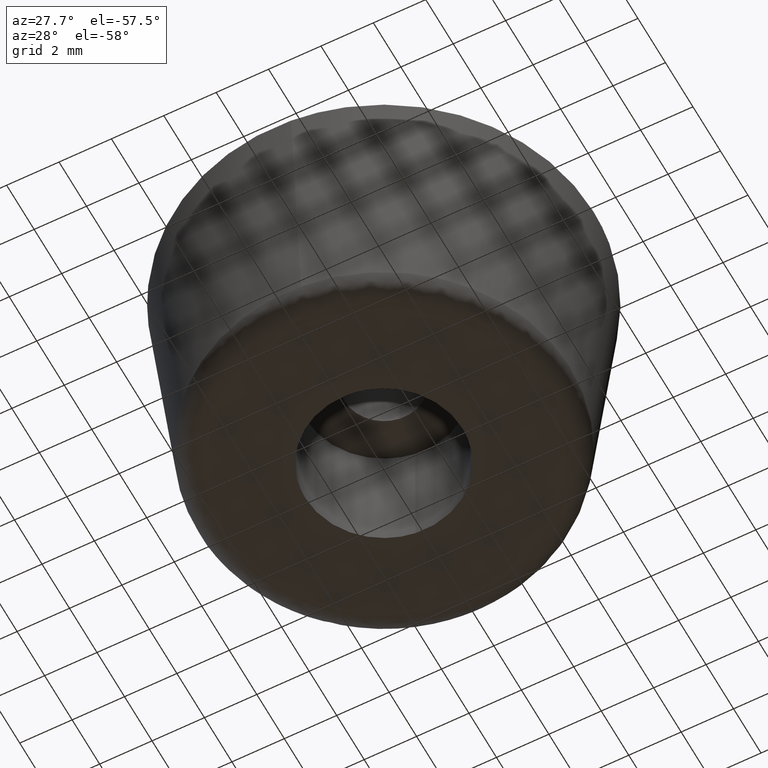
[diagram: clean part render]
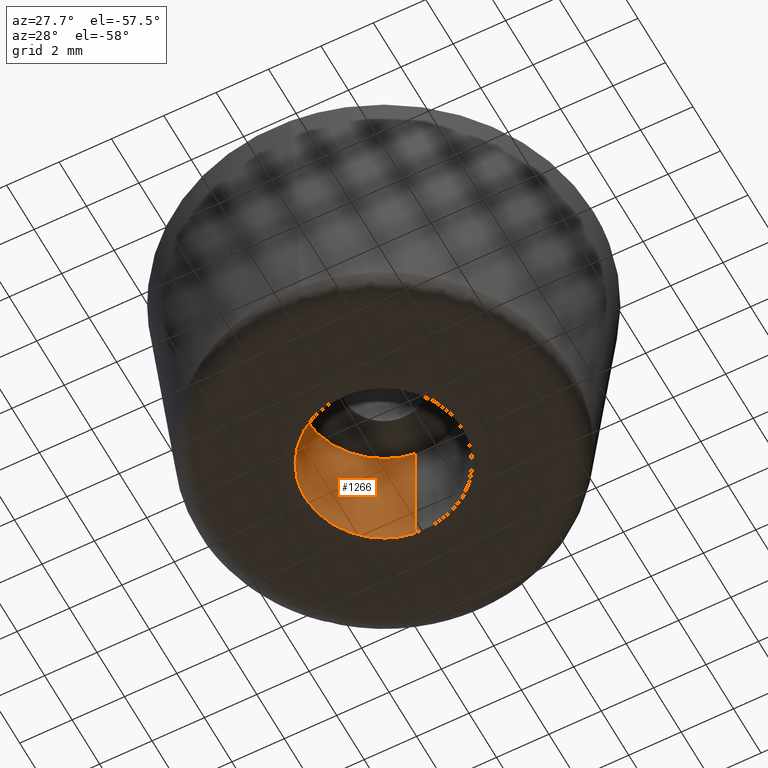
[diagram: same view with one face highlighted and labeled with its STEP entity id]
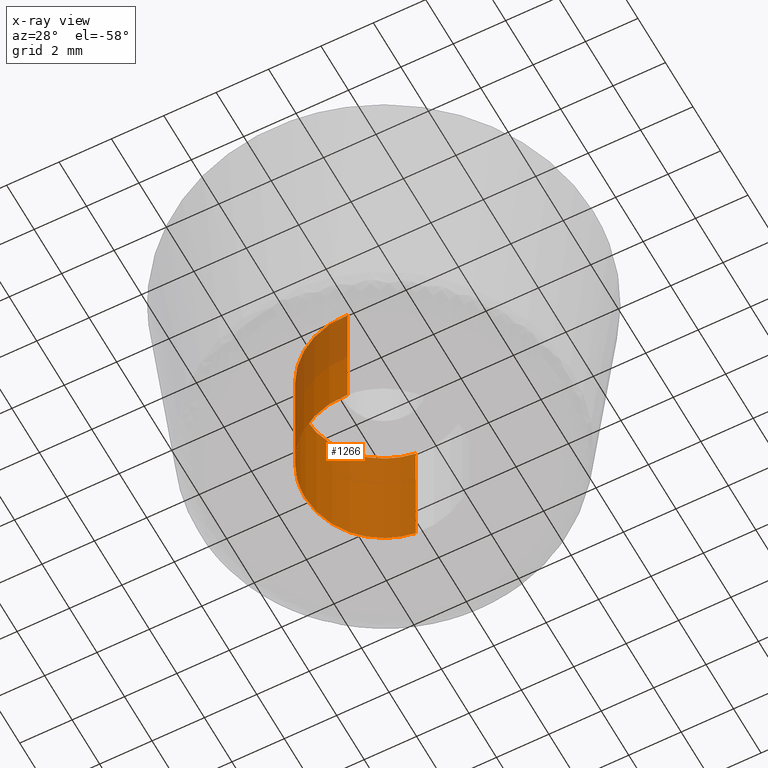
[diagram: x-ray of the same camera — body ghosted, the highlighted face saturated]
A machine part, auxiliary view. The second image highlights one B-rep face of the part: STEP entity #1266.
The next image is the same camera in x-ray: the body ghosted, the highlighted face saturated — about 16% of this face is hidden behind the body in this view.
In plain terms, the highlighted face is a freeform B-spline surface patch.
Its self-contained STEP definition (entity closure, byte-faithful):
#1103=CARTESIAN_POINT('',(-0.354100897287089,2.979028793841571,6.573276E-015));
#1104=VERTEX_POINT('',#1103);
#1122=CARTESIAN_POINT('',(0.183142324537267,-2.994404596735751,-1.675049E-014));
#1123=VERTEX_POINT('',#1122);
#1137=CARTESIAN_POINT('',(0.183142365225985,-2.994404594247211,5.0));
#1138=VERTEX_POINT('',#1137);
#1139=CARTESIAN_POINT('',(0.183142365225985,-2.994404594247211,5.0));
#1140=CARTESIAN_POINT('',(0.183142324537267,-2.994404596735751,-1.675049E-014));
#1141=QUASI_UNIFORM_CURVE('',1,(#1139,#1140),.UNSPECIFIED.,.F.,.U.);
#1142=EDGE_CURVE('',#1138,#1123,#1141,.T.);
#1159=CARTESIAN_POINT('',(-0.354100919549448,2.979028791195380,5.0));
#1160=VERTEX_POINT('',#1159);
#1176=CARTESIAN_POINT('',(-0.354100919549448,2.979028791195380,5.0));
#1177=CARTESIAN_POINT('',(-0.354100897287089,2.979028793841571,6.573276E-015));
#1178=QUASI_UNIFORM_CURVE('',1,(#1176,#1177),.UNSPECIFIED.,.F.,.U.);
#1179=EDGE_CURVE('',#1160,#1104,#1178,.T.);
#1184=CARTESIAN_POINT('',(0.183145618604571,-2.994404395265600,5.125000000000001));
#1185=CARTESIAN_POINT('',(-2.811258776661029,-3.177550013870171,5.125000000000001));
#1186=CARTESIAN_POINT('',(-2.994404395265600,-0.183145618604571,5.125000000000001));
#1187=CARTESIAN_POINT('',(-3.167358590197582,2.644630472518504,5.125000000000001));
#1188=CARTESIAN_POINT('',(-0.354102703970275,2.979028579091000,5.125000000000002));
#1189=CARTESIAN_POINT('',(0.183145618604571,-2.994404395265600,-0.128125000000000));
#1190=CARTESIAN_POINT('',(-2.811258776661029,-3.177550013870171,-0.128125000000000));
#1191=CARTESIAN_POINT('',(-2.994404395265600,-0.183145618604571,-0.128125000000000));
#1192=CARTESIAN_POINT('',(-3.167358590197582,2.644630472518504,-0.128125000000000));
#1193=CARTESIAN_POINT('',(-0.354102703970275,2.979028579091000,-0.128125000000000));
#1201=(BOUNDED_SURFACE()B_SPLINE_SURFACE(2,1,((#1184,#1189),(#1185,#1190),(#1186,#1191),(#1187,#1192),(#1188,#1193)),.UNSPECIFIED.,.F.,.F.,.U.)B_SPLINE_SURFACE_WITH_KNOTS((3,2,3),(2,2),(0.0,4.970562748477139,9.742302987015194),(0.0,5.253125000000001),.UNSPECIFIED.)GEOMETRIC_REPRESENTATION_ITEM()RATIONAL_B_SPLINE_SURFACE(((1.0,1.0),(0.707106781186548,0.707106781186548),(1.0,1.0),(0.718822509939086,0.718822509939086),(0.977505800795127,0.977505800795127)))REPRESENTATION_ITEM('')SURFACE());
#1202=CARTESIAN_POINT('',(-3.0,0.0,0.0));
#1203=VERTEX_POINT('',#1202);
#1204=CARTESIAN_POINT('',(-3.0,0.0,0.0));
#1205=CARTESIAN_POINT('',(-3.000000000000000,2.664525205176386,0.0));
#1206=CARTESIAN_POINT('',(-0.354100897287090,2.979028793841571,6.573276E-015));
#1214=(BOUNDED_CURVE()B_SPLINE_CURVE(2,(#1204,#1205,#1206),.UNSPECIFIED.,.F.,.U.)B_SPLINE_CURVE_WITH_KNOTS((3,3),(0.0,0.229562576010579),.UNSPECIFIED.)CURVE()GEOMETRIC_REPRESENTATION_ITEM()RATIONAL_B_SPLINE_CURVE((1.0,0.731050712772614,0.956026955082251))REPRESENTATION_ITEM(''));
#1215=EDGE_CURVE('',#1203,#1104,#1214,.T.);
#1216=ORIENTED_EDGE('',*,*,#1215,.T.);
#1217=ORIENTED_EDGE('',*,*,#1179,.F.);
#1218=CARTESIAN_POINT('',(-3.0,0.0,5.0));
#1219=VERTEX_POINT('',#1218);
#1220=CARTESIAN_POINT('',(-3.0,0.0,5.0));
#1221=CARTESIAN_POINT('',(-3.000000000000000,2.664525185124150,4.999999999999999));
#1222=CARTESIAN_POINT('',(-0.354100919549448,2.979028791195380,5.0));
#1230=(BOUNDED_CURVE()B_SPLINE_CURVE(2,(#1220,#1221,#1222),.UNSPECIFIED.,.F.,.U.)B_SPLINE_CURVE_WITH_KNOTS((3,3),(0.0,0.229562574747613),.UNSPECIFIED.)CURVE()GEOMETRIC_REPRESENTATION_ITEM()RATIONAL_B_SPLINE_CURVE((1.0,0.731050714252271,0.956026952606784))REPRESENTATION_ITEM(''));
#1231=EDGE_CURVE('',#1219,#1160,#1230,.T.);
#1232=ORIENTED_EDGE('',*,*,#1231,.F.);
#1233=CARTESIAN_POINT('',(0.183142365225985,-2.994404594247210,5.0));
#1234=CARTESIAN_POINT('',(0.091656658645530,-3.000000000000000,5.0));
#1235=CARTESIAN_POINT('',(0.0,-3.0,5.0));
#1236=CARTESIAN_POINT('',(-3.0,-3.0,5.000000000000001));
#1237=CARTESIAN_POINT('',(-3.0,0.0,5.0));
#1245=(BOUNDED_CURVE()B_SPLINE_CURVE(2,(#1233,#1234,#1235,#1236,#1237),.UNSPECIFIED.,.F.,.U.)B_SPLINE_CURVE_WITH_KNOTS((3,2,3),(0.739333149711674,0.750000000000000,1.0),.UNSPECIFIED.)CURVE()GEOMETRIC_REPRESENTATION_ITEM()RATIONAL_B_SPLINE_CURVE((0.976072443456796,0.987503007537804,1.0,0.707106781186548,1.0))REPRESENTATION_ITEM(''));
#1246=EDGE_CURVE('',#1138,#1219,#1245,.T.);
#1247=ORIENTED_EDGE('',*,*,#1246,.F.);
#1248=ORIENTED_EDGE('',*,*,#1142,.T.);
#1249=CARTESIAN_POINT('',(0.183142324537267,-2.994404596735751,-1.675049E-014));
#1250=CARTESIAN_POINT('',(0.091656638244131,-3.000000000000000,0.0));
#1251=CARTESIAN_POINT('',(0.0,-3.0,0.0));
#1252=CARTESIAN_POINT('',(-3.0,-3.0,0.0));
#1253=CARTESIAN_POINT('',(-3.0,0.0,0.0));
#1261=(BOUNDED_CURVE()B_SPLINE_CURVE(2,(#1249,#1250,#1251,#1252,#1253),.UNSPECIFIED.,.F.,.U.)B_SPLINE_CURVE_WITH_KNOTS((3,2,3),(0.739333152056283,0.750000000000000,1.0),.UNSPECIFIED.)CURVE()GEOMETRIC_REPRESENTATION_ITEM()RATIONAL_B_SPLINE_CURVE((0.976072448481749,0.987503010284685,1.0,0.707106781186548,1.0))REPRESENTATION_ITEM(''));
#1262=EDGE_CURVE('',#1123,#1203,#1261,.T.);
#1263=ORIENTED_EDGE('',*,*,#1262,.T.);
#1264=EDGE_LOOP('',(#1216,#1217,#1232,#1247,#1248,#1263));
#1265=FACE_OUTER_BOUND('',#1264,.T.);
#1266=ADVANCED_FACE('',(#1265),#1201,.F.);